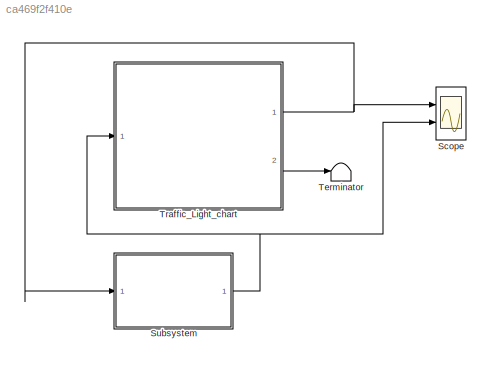
MODEL slx_ca469f2f410e
KIND model
CONFIG AbsTol = auto
CONFIG EnableMultiTasking = off
CONFIG FixedStep = auto
CONFIG MaxStep = auto
CONFIG MinStep = auto
CONFIG RelTol = 1e-3
CONFIG SampleTimeConstraint = Unconstrained
CONFIG SolverName = FixedStepDiscrete
CONFIG StartTime = 0.0
CONFIG StopTime = 100
BLOCK [Scope] Scope
  Floating = off
  NumInputPorts = 2
  Ports = [2]
  ScopeSpecificationString = Simulink.scopes.TimeScopeBlockCfg('CurrentConfiguration', extmgr.ConfigurationSet(extmgr.Configuration('Core','General UI',true),extmgr.Configuration('Core','Source UI',true),extmgr.Configuration('Sources','WiredSimulink',true),extmgr.Configuration('Visuals','Time Domain',true,'SerializedDisplays',{struct('MinYLimReal','0.75','MaxYLimReal','3.25','YLabelReal','','MinYLimMag','0.75','MaxYLimMag','3...<+2106ch>
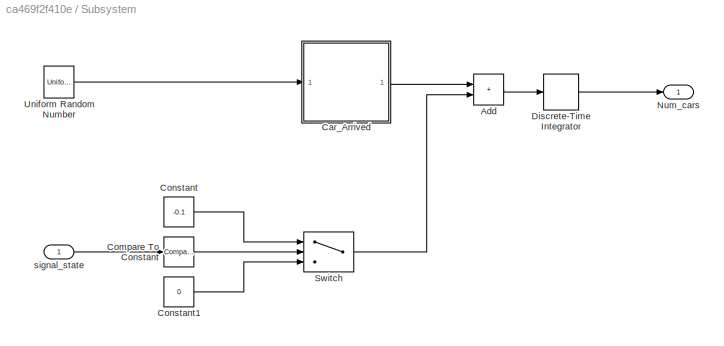
BLOCK [SubSystem] Subsystem
  Ports = [1, 1]
  RequestExecContextInheritance = off
BLOCK [Sum] Subsystem/Add
  IconShape = rectangular
  Ports = [2, 1]
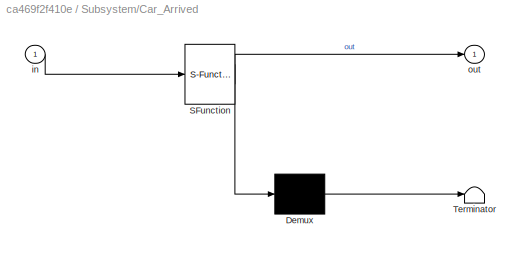
BLOCK [SubSystem] Subsystem/Car_Arrived
  ErrorFcn = Stateflow.Translate.translate
  PermitHierarchicalResolution = ExplicitOnly
  Ports = [1, 1]
  RequestExecContextInheritance = off
  SFBlockType = Chart
  TreatAsAtomicUnit = on
BLOCK [Demux] Subsystem/Car_Arrived/ Demux 
  Outputs = 1
  Ports = [1, 1]
BLOCK [S-Function] Subsystem/Car_Arrived/ SFunction 
  EnableBusSupport = on
  FunctionName = sf_sfun
  PortCounts = [1 2]
  Ports = [1, 2]
  SFcnIsStateOwnerBlock = off
  SFunctionDeploymentMode = off
  Tag = Stateflow S-Function 1
BLOCK [Terminator] Subsystem/Car_Arrived/ Terminator 
BLOCK [Inport] Subsystem/Car_Arrived/in
BLOCK [Outport] Subsystem/Car_Arrived/out
BLOCK [Reference] Subsystem/Compare To Constant  REF=simulink/Logic and Bit
Operations/Compare
To Constant
  Ports = [1, 1]
  SourceBlock = simulink/Logic and Bit\nOperations/Compare\nTo Constant
  SourceProductBaseCode = SL
  SourceType = Compare To Constant
BLOCK [Constant] Subsystem/Constant
  Value = -0.1
BLOCK [Constant] Subsystem/Constant1
  Value = 0
BLOCK [DiscreteIntegrator] Subsystem/Discrete-Time Integrator
  ICPrevOutput = DiscIntNeverNeededParam
  ICPrevScaledInput = DiscIntNeverNeededParam
  LimitOutput = on
  LowerSaturationLimit = 0
  Ports = [1, 1]
  SampleTime = -1
BLOCK [Outport] Subsystem/Num_cars
BLOCK [Switch] Subsystem/Switch
  Criteria = u2 > Threshold
  InputSameDT = off
  SaturateOnIntegerOverflow = off
BLOCK [UniformRandomNumber] Subsystem/Uniform Random Number
  Maximum = 100
  Minimum = 0
  SampleTime = 0
  Seed = 177836
BLOCK [Inport] Subsystem/signal_state
BLOCK [Terminator] Terminator
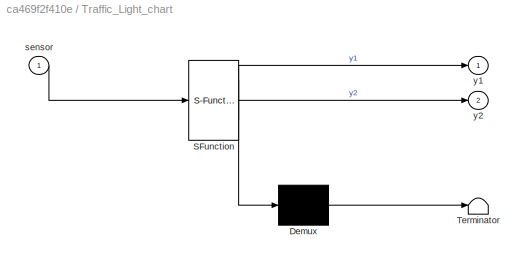
BLOCK [SubSystem] Traffic_Light_chart
  ErrorFcn = Stateflow.Translate.translate
  PermitHierarchicalResolution = ExplicitOnly
  Ports = [1, 2]
  RequestExecContextInheritance = off
  SFBlockType = Chart
  TreatAsAtomicUnit = on
BLOCK [Demux] Traffic_Light_chart/ Demux 
  Outputs = 1
  Ports = [1, 1]
BLOCK [S-Function] Traffic_Light_chart/ SFunction 
  EnableBusSupport = on
  FunctionName = sf_sfun
  PortCounts = [1 3]
  Ports = [1, 3]
  SFcnIsStateOwnerBlock = off
  SFunctionDeploymentMode = off
  Tag = Stateflow S-Function 3
BLOCK [Terminator] Traffic_Light_chart/ Terminator 
BLOCK [Inport] Traffic_Light_chart/sensor
BLOCK [Outport] Traffic_Light_chart/y1
BLOCK [Outport] Traffic_Light_chart/y2
  Port = 2
LINE Subsystem/Add:1 -> Subsystem/Discrete-Time Integrator:1
LINE Subsystem/Car_Arrived:1 -> Subsystem/Add:1
LINE Subsystem/Compare To Constant:1 -> Subsystem/Switch:2
LINE Subsystem/Constant1:1 -> Subsystem/Switch:3
LINE Subsystem/Constant:1 -> Subsystem/Switch:1
LINE Subsystem/Discrete-Time Integrator:1 -> Subsystem/Num_cars:1
LINE Subsystem/Switch:1 -> Subsystem/Add:2
LINE Subsystem/Uniform Random Number:1 -> Subsystem/Car_Arrived:1
LINE Subsystem/signal_state:1 -> Subsystem/Compare To Constant:1
NET Subsystem:1 -> Scope:2, Traffic_Light_chart:1
NET Traffic_Light_chart:1 -> Scope:1, Subsystem:1
LINE Traffic_Light_chart:2 -> Terminator:1
note: NET lines group one-source signal fan-out (src -> all destinations, sorted); 1:1 wires keep LINE
CHART Subsystem/Car_Arrived states=0 transitions=1
CHART Traffic_Light_chart states=5 transitions=6
  STATE_LABEL 'Stop\ny1=Red;\ny2=Green;'
  STATE_LABEL 'StopforTraffic\ny1=Red;\ny2=Green;'
  STATE_LABEL 'StoptoGo\ny1=Red;\ny2=Yellow;'
  STATE_LABEL 'GotoStop\ny1=Yellow;\ny2=Red;'
  STATE_LABEL 'Go\ny1=Green;\ny2=Red;'
CHART  states=0 transitions=0
CHART  states=0 transitions=0
